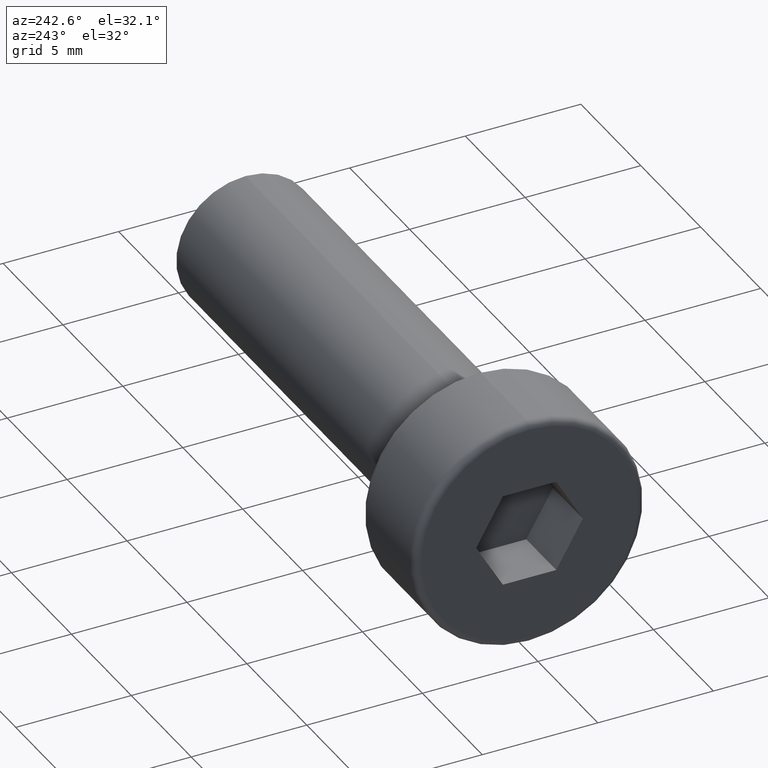
[diagram: clean part render]
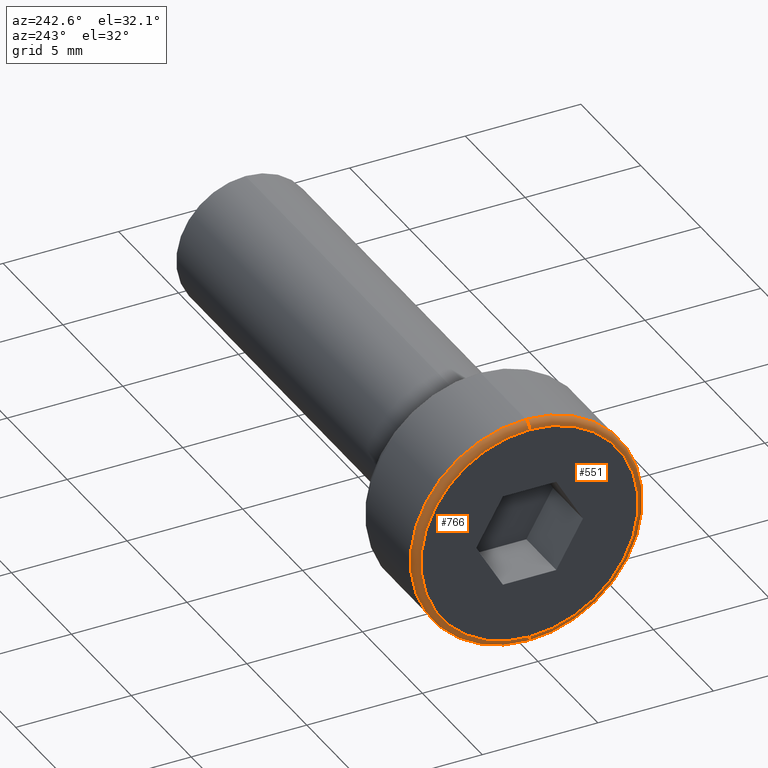
[diagram: same view with one multi-face feature highlighted, each face labeled with its STEP entity id]
A machine part, auxiliary view. The highlighted faces form ONE feature: a constant-radius fillet chain: 2 tangent blend faces with common blend radius 0.3 mm. The faces share edges in the B-rep.
Their STEP definitions:
[1] entity #551 (Torus):
#1 = VERTEX_POINT ( 'NONE', #497 ) ;
#13 = CIRCLE ( 'NONE', #451, 0.2999999999999999300 ) ;
#17 = FACE_OUTER_BOUND ( 'NONE', #751, .T. ) ;
#21 = EDGE_CURVE ( 'NONE', #603, #238, #558, .T. ) ;
#69 = CARTESIAN_POINT ( 'NONE',  ( -4.000000000000000000, 6.123233995736765300E-016, 5.000000000000000000 ) ) ;
#101 = VERTEX_POINT ( 'NONE', #502 ) ;
#103 = AXIS2_PLACEMENT_3D ( 'NONE', #702, #435, #749 ) ;
#112 = ORIENTED_EDGE ( 'NONE', *, *, #508, .F. ) ;
#200 = AXIS2_PLACEMENT_3D ( 'NONE', #400, #598, #556 ) ;
#201 = CIRCLE ( 'NONE', #200, 4.700000000000000200 ) ;
#205 = DIRECTION ( 'NONE',  ( 0.0000000000000000000, 0.0000000000000000000, -1.000000000000000000 ) ) ;
#225 = CARTESIAN_POINT ( 'NONE',  ( -4.000000000000000000, 0.0000000000000000000, 0.0000000000000000000 ) ) ;
#238 = VERTEX_POINT ( 'NONE', #69 ) ;
#278 = DIRECTION ( 'NONE',  ( 0.0000000000000000000, 0.0000000000000000000, -1.000000000000000000 ) ) ;
#317 = CIRCLE ( 'NONE', #464, 5.000000000000000000 ) ;
#364 = DIRECTION ( 'NONE',  ( 1.000000000000000000, 0.0000000000000000000, 0.0000000000000000000 ) ) ;
#399 = ORIENTED_EDGE ( 'NONE', *, *, #561, .F. ) ;
#400 = CARTESIAN_POINT ( 'NONE',  ( -4.299999999999999800, 0.0000000000000000000, 0.0000000000000000000 ) ) ;
#428 = AXIS2_PLACEMENT_3D ( 'NONE', #477, #717, #278 ) ;
#435 = DIRECTION ( 'NONE',  ( 0.0000000000000000000, 1.000000000000000000, -1.224646799147353200E-016 ) ) ;
#448 = ORIENTED_EDGE ( 'NONE', *, *, #21, .F. ) ;
#451 = AXIS2_PLACEMENT_3D ( 'NONE', #473, #565, #695 ) ;
#464 = AXIS2_PLACEMENT_3D ( 'NONE', #225, #364, #205 ) ;
#473 = CARTESIAN_POINT ( 'NONE',  ( -4.000000000000000000, 0.0000000000000000000, -4.700000000000000200 ) ) ;
#477 = CARTESIAN_POINT ( 'NONE',  ( -4.000000000000000000, 0.0000000000000000000, 0.0000000000000000000 ) ) ;
#497 = CARTESIAN_POINT ( 'NONE',  ( -4.000000000000000000, 0.0000000000000000000, -5.000000000000000000 ) ) ;
#502 = CARTESIAN_POINT ( 'NONE',  ( -4.299999999999999800, 0.0000000000000000000, -4.700000000000000200 ) ) ;
#508 = EDGE_CURVE ( 'NONE', #101, #603, #201, .T. ) ;
#551 = ADVANCED_FACE ( 'NONE', ( #17 ), #667, .T. ) ;
#556 = DIRECTION ( 'NONE',  ( 0.0000000000000000000, 0.0000000000000000000, -1.000000000000000000 ) ) ;
#558 = CIRCLE ( 'NONE', #103, 0.2999999999999999300 ) ;
#561 = EDGE_CURVE ( 'NONE', #238, #1, #317, .T. ) ;
#565 = DIRECTION ( 'NONE',  ( 0.0000000000000000000, -1.000000000000000000, 0.0000000000000000000 ) ) ;
#598 = DIRECTION ( 'NONE',  ( -1.000000000000000000, -0.0000000000000000000, -0.0000000000000000000 ) ) ;
#603 = VERTEX_POINT ( 'NONE', #620 ) ;
#615 = ORIENTED_EDGE ( 'NONE', *, *, #724, .T. ) ;
#620 = CARTESIAN_POINT ( 'NONE',  ( -4.299999999999999800, 5.939536975864663000E-016, 4.700000000000000200 ) ) ;
#667 = TOROIDAL_SURFACE ( 'NONE', #428, 4.700000000000000200, 0.2999999999999999900 ) ;
#695 = DIRECTION ( 'NONE',  ( 0.0000000000000000000, 0.0000000000000000000, -1.000000000000000000 ) ) ;
#702 = CARTESIAN_POINT ( 'NONE',  ( -4.000000000000000000, 5.755839955992559700E-016, 4.700000000000000200 ) ) ;
#717 = DIRECTION ( 'NONE',  ( 1.000000000000000000, 0.0000000000000000000, 0.0000000000000000000 ) ) ;
#724 = EDGE_CURVE ( 'NONE', #101, #1, #13, .T. ) ;
#749 = DIRECTION ( 'NONE',  ( 0.0000000000000000000, 1.224646799147353200E-016, 1.000000000000000000 ) ) ;
#751 = EDGE_LOOP ( 'NONE', ( #448, #112, #615, #399 ) ) ;
[2] entity #766 (Torus):
#1 = VERTEX_POINT ( 'NONE', #497 ) ;
#13 = CIRCLE ( 'NONE', #451, 0.2999999999999999300 ) ;
#21 = EDGE_CURVE ( 'NONE', #603, #238, #558, .T. ) ;
#32 = CARTESIAN_POINT ( 'NONE',  ( -4.000000000000000000, 0.0000000000000000000, 0.0000000000000000000 ) ) ;
#40 = DIRECTION ( 'NONE',  ( 0.0000000000000000000, 0.0000000000000000000, -1.000000000000000000 ) ) ;
#69 = CARTESIAN_POINT ( 'NONE',  ( -4.000000000000000000, 6.123233995736765300E-016, 5.000000000000000000 ) ) ;
#101 = VERTEX_POINT ( 'NONE', #502 ) ;
#103 = AXIS2_PLACEMENT_3D ( 'NONE', #702, #435, #749 ) ;
#108 = DIRECTION ( 'NONE',  ( 1.000000000000000000, 0.0000000000000000000, 0.0000000000000000000 ) ) ;
#131 = ORIENTED_EDGE ( 'NONE', *, *, #21, .T. ) ;
#137 = FACE_OUTER_BOUND ( 'NONE', #732, .T. ) ;
#238 = VERTEX_POINT ( 'NONE', #69 ) ;
#309 = TOROIDAL_SURFACE ( 'NONE', #673, 4.700000000000000200, 0.2999999999999999900 ) ;
#378 = ORIENTED_EDGE ( 'NONE', *, *, #599, .F. ) ;
#402 = ORIENTED_EDGE ( 'NONE', *, *, #807, .F. ) ;
#421 = DIRECTION ( 'NONE',  ( 0.0000000000000000000, 0.0000000000000000000, -1.000000000000000000 ) ) ;
#425 = DIRECTION ( 'NONE',  ( 0.0000000000000000000, 0.0000000000000000000, -1.000000000000000000 ) ) ;
#435 = DIRECTION ( 'NONE',  ( 0.0000000000000000000, 1.000000000000000000, -1.224646799147353200E-016 ) ) ;
#451 = AXIS2_PLACEMENT_3D ( 'NONE', #473, #565, #695 ) ;
#461 = CIRCLE ( 'NONE', #710, 5.000000000000000000 ) ;
#473 = CARTESIAN_POINT ( 'NONE',  ( -4.000000000000000000, 0.0000000000000000000, -4.700000000000000200 ) ) ;
#497 = CARTESIAN_POINT ( 'NONE',  ( -4.000000000000000000, 0.0000000000000000000, -5.000000000000000000 ) ) ;
#502 = CARTESIAN_POINT ( 'NONE',  ( -4.299999999999999800, 0.0000000000000000000, -4.700000000000000200 ) ) ;
#533 = DIRECTION ( 'NONE',  ( -1.000000000000000000, -0.0000000000000000000, -0.0000000000000000000 ) ) ;
#558 = CIRCLE ( 'NONE', #103, 0.2999999999999999300 ) ;
#565 = DIRECTION ( 'NONE',  ( 0.0000000000000000000, -1.000000000000000000, 0.0000000000000000000 ) ) ;
#599 = EDGE_CURVE ( 'NONE', #603, #101, #651, .T. ) ;
#600 = AXIS2_PLACEMENT_3D ( 'NONE', #731, #533, #40 ) ;
#603 = VERTEX_POINT ( 'NONE', #620 ) ;
#620 = CARTESIAN_POINT ( 'NONE',  ( -4.299999999999999800, 5.939536975864663000E-016, 4.700000000000000200 ) ) ;
#651 = CIRCLE ( 'NONE', #600, 4.700000000000000200 ) ;
#673 = AXIS2_PLACEMENT_3D ( 'NONE', #32, #681, #425 ) ;
#681 = DIRECTION ( 'NONE',  ( 1.000000000000000000, 0.0000000000000000000, 0.0000000000000000000 ) ) ;
#690 = CARTESIAN_POINT ( 'NONE',  ( -4.000000000000000000, 0.0000000000000000000, 0.0000000000000000000 ) ) ;
#695 = DIRECTION ( 'NONE',  ( 0.0000000000000000000, 0.0000000000000000000, -1.000000000000000000 ) ) ;
#702 = CARTESIAN_POINT ( 'NONE',  ( -4.000000000000000000, 5.755839955992559700E-016, 4.700000000000000200 ) ) ;
#710 = AXIS2_PLACEMENT_3D ( 'NONE', #690, #108, #421 ) ;
#724 = EDGE_CURVE ( 'NONE', #101, #1, #13, .T. ) ;
#731 = CARTESIAN_POINT ( 'NONE',  ( -4.299999999999999800, 0.0000000000000000000, 0.0000000000000000000 ) ) ;
#732 = EDGE_LOOP ( 'NONE', ( #378, #131, #402, #803 ) ) ;
#749 = DIRECTION ( 'NONE',  ( 0.0000000000000000000, 1.224646799147353200E-016, 1.000000000000000000 ) ) ;
#766 = ADVANCED_FACE ( 'NONE', ( #137 ), #309, .T. ) ;
#803 = ORIENTED_EDGE ( 'NONE', *, *, #724, .F. ) ;
#807 = EDGE_CURVE ( 'NONE', #1, #238, #461, .T. ) ;